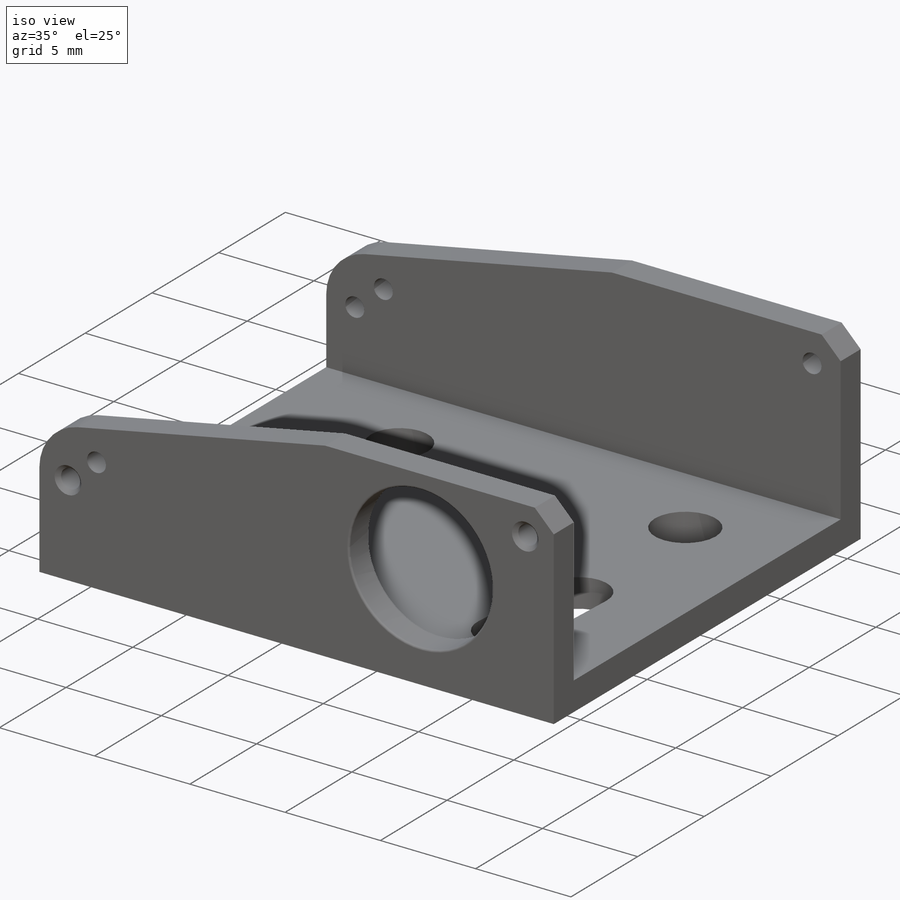
[diagram: iso view]
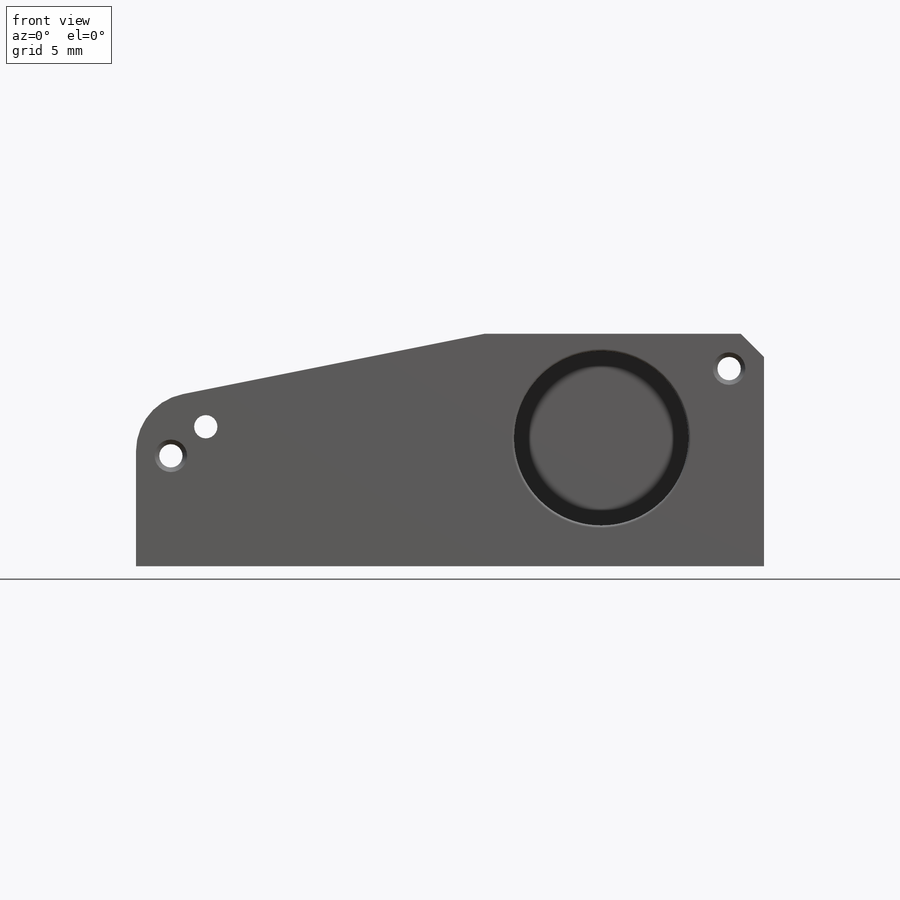
[diagram: front view]
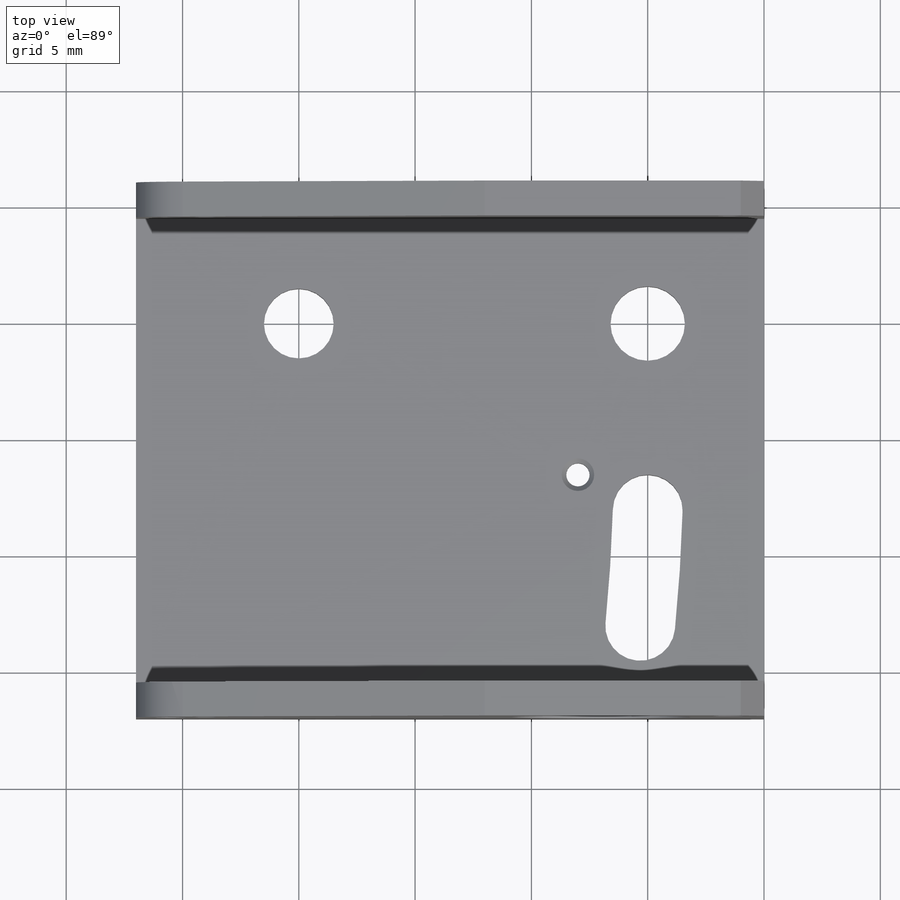
[diagram: top view]
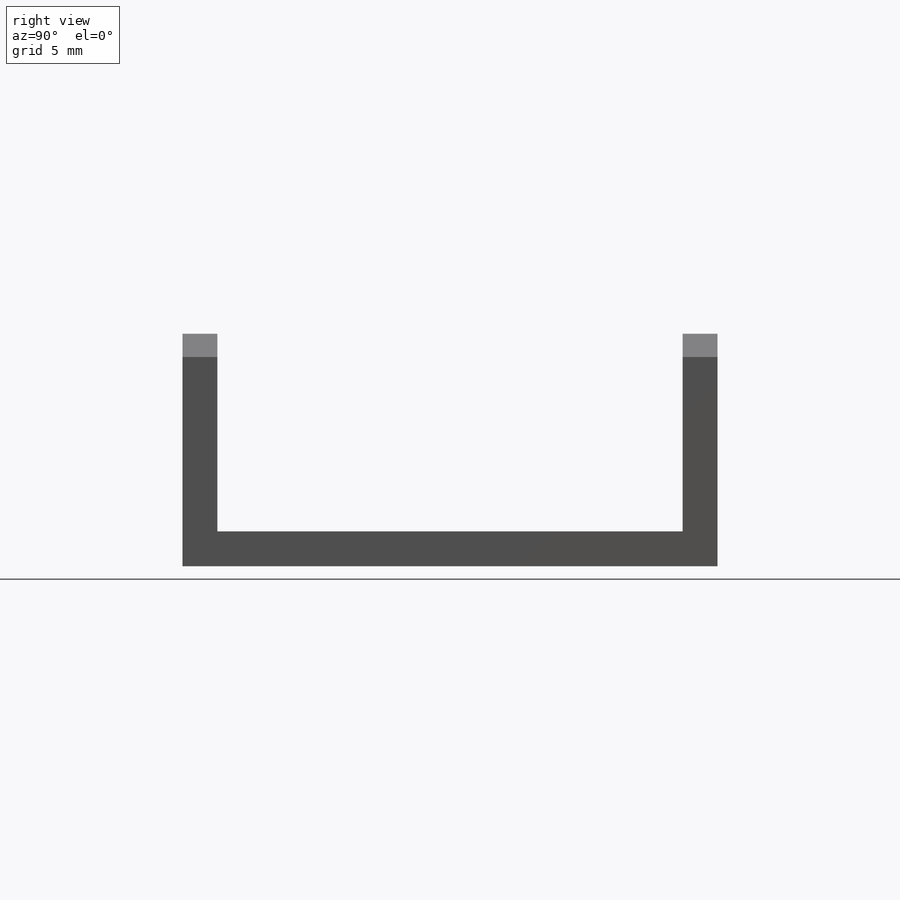
[diagram: right view]
SOLIDWORKS PART (.sldprt)
format: sldprt  version: not decoded by parser v0  size: 272,896 bytes
history: native  units: mm
features: sketch x3, extrude x3, fillet x2, material x1, chamfer x1 (+15 scaffold rows collapsed)
feature tree (25):
  scaffold x15  (default folders/planes/origin — collapsed)
  material  "6061 Alloy"
  sketch  "Sketch1"  dims[c1.D1=3.2mm c1.D8=1.5mm c1.D11=3.0mm c1.D13=6.0mm c1.D14=1.0mm c1.D2=27.0mm c1.D3=6.0mm c1.D4=23.0mm c1.D5=5.0mm c1.D6=6.0mm c1.D7=70.0mm c1.D9=8.0mm c1.D10=13.0mm c1.D12=15.0mm c2.D14=~0.32217mm c2.D15=6.5mm c2.D16=3.0mm]
  extrude  "Extrude1"  Depth=1.5mm
  sketch  "Sketch2"  dims[c1.D6=1.0mm c1.D9=7.5mm c1.D14=1.0mm c1.D15=1.0mm c1.D17=2.5mm c1.D1=4.5mm c1.D2=1.0mm c1.D3=1.0mm c1.D4=10.0mm c1.D5=12.0mm c1.D7=1.5mm c1.D8=1.5mm c1.D10=4.0mm c1.D11=7.0mm c1.D12=1.5mm c1.D13=3.25mm c1.D16=2.0mm c1.D18=7.0mm c2.D13=4.75mm c2.D19=2.0mm c2.D16=1.5mm c2.D20=6.0mm c2.D21=1.25mm c2.D10=5.5mm c2.D22=3.75mm]
  extrude  "Extrude2"  Depth=1.5mm
  sketch  "Sketch3"
  extrude  "Extrude3"  Depth=1.5mm
  fillet  "Fillet1"  Radius=0.1mm
  chamfer  "Chamfer1"  Distance=0.2mm Angle=45deg
  fillet  "Fillet2"  Radius=2.5mm
decode coverage: 8 of 9 modeling features carry decoded parameters
note: ~ marks probable driven/reference dimensions
note: suppression state not decoded; provenance and decode notes live in map.json
